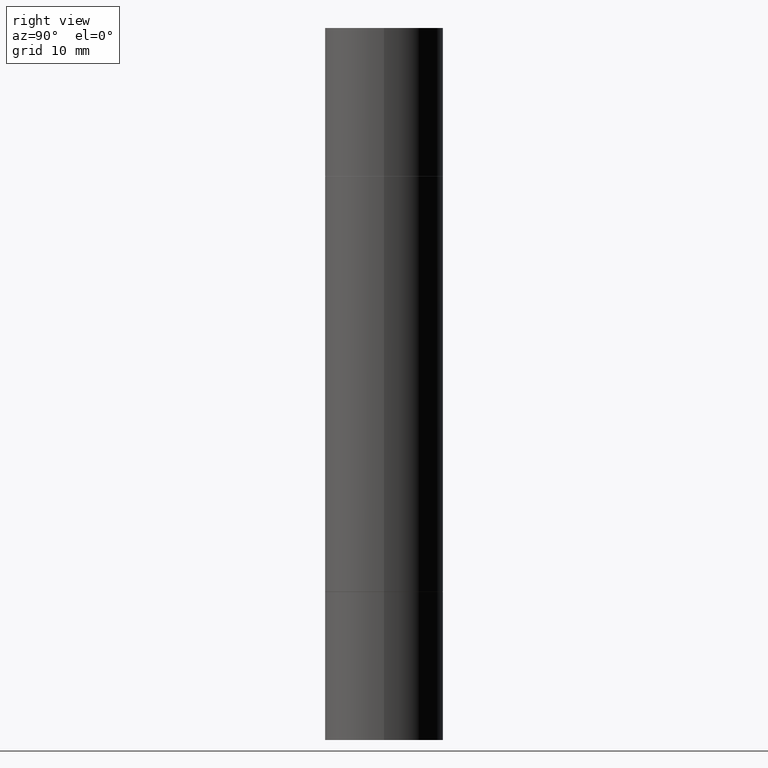
[diagram: clean part render]
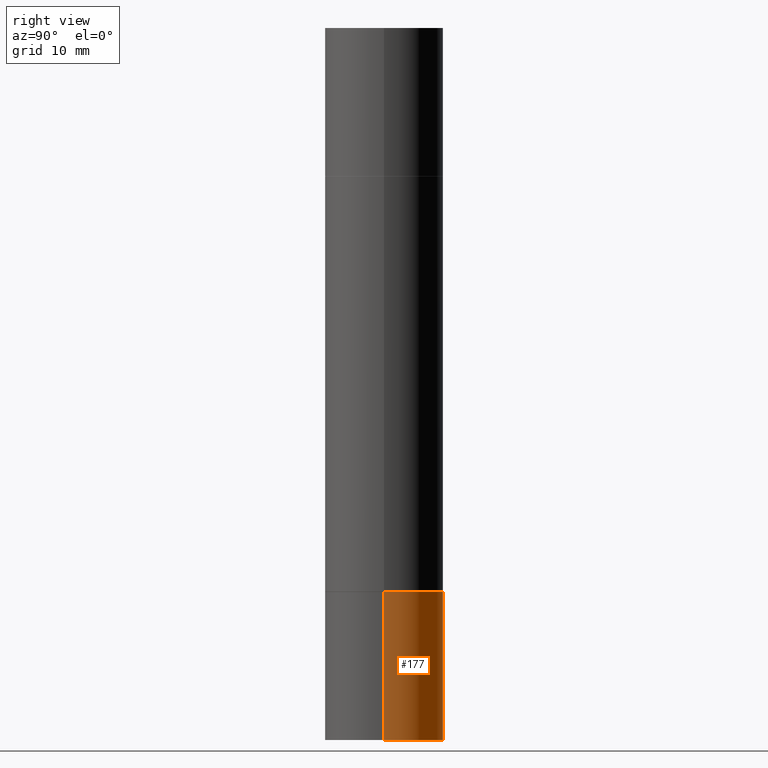
[diagram: same view with one face highlighted and labeled with its STEP entity id]
A machine part, right view. The second image highlights one B-rep face of the part: STEP entity #177.
In plain terms, the highlighted cylindrical surface (partial cylindrical patch) has radius 6.35 mm, axis along (-0, 0, 1).
Its self-contained STEP definition (entity closure, byte-faithful):
#41 = VERTEX_POINT ( 'NONE', #342 ) ;
#46 = EDGE_CURVE ( 'NONE', #110, #528, #500, .T. ) ;
#47 = CARTESIAN_POINT ( 'NONE',  ( 0.000000000000000000, 0.000000000000000000, 0.000000000000000000 ) ) ;
#65 = AXIS2_PLACEMENT_3D ( 'NONE', #357, #470, #413 ) ;
#110 = VERTEX_POINT ( 'NONE', #508 ) ;
#113 = LINE ( 'NONE', #637, #650 ) ;
#155 = DIRECTION ( 'NONE',  ( -2.445468806185136877E-29, 3.491481338843145188E-15, 1.000000000000000000 ) ) ;
#160 = CYLINDRICAL_SURFACE ( 'NONE', #676, 0.2500000000000000000 ) ;
#177 = ADVANCED_FACE ( 'NONE', ( #263 ), #160, .T. ) ;
#231 = EDGE_CURVE ( 'NONE', #370, #41, #113, .T. ) ;
#261 = ORIENTED_EDGE ( 'NONE', *, *, #46, .F. ) ;
#263 = FACE_OUTER_BOUND ( 'NONE', #550, .T. ) ;
#293 = DIRECTION ( 'NONE',  ( 1.000000000000000000, -6.982962677686266711E-15, 0.000000000000000000 ) ) ;
#294 = CIRCLE ( 'NONE', #672, 0.2500000000000000000 ) ;
#337 = CARTESIAN_POINT ( 'NONE',  ( 0.2500000000000000000, -1.003800884917403837E-14, -2.375000000000000000 ) ) ;
#341 = VECTOR ( 'NONE', #510, 39.37007874015748143 ) ;
#342 = CARTESIAN_POINT ( 'NONE',  ( -0.2500000000000000000, -7.606999258740704349E-15, -2.375000000000000000 ) ) ;
#357 = CARTESIAN_POINT ( 'NONE',  ( 7.336406418555409790E-29, -1.047444401652943635E-14, -3.000000000000000444 ) ) ;
#362 = DIRECTION ( 'NONE',  ( 1.000000000000000000, -6.982962677686266711E-15, 4.876176775795935793E-29 ) ) ;
#370 = VERTEX_POINT ( 'NONE', #492 ) ;
#394 = ORIENTED_EDGE ( 'NONE', *, *, #493, .T. ) ;
#412 = ORIENTED_EDGE ( 'NONE', *, *, #231, .T. ) ;
#413 = DIRECTION ( 'NONE',  ( 1.000000000000000000, -6.982962677686262766E-15, 0.000000000000000000 ) ) ;
#421 = DIRECTION ( 'NONE',  ( -2.445468806185136597E-29, 3.491481338843145583E-15, 1.000000000000000000 ) ) ;
#431 = ORIENTED_EDGE ( 'NONE', *, *, #601, .F. ) ;
#470 = DIRECTION ( 'NONE',  ( -2.445468806185136597E-29, 3.491481338843145583E-15, 1.000000000000000000 ) ) ;
#492 = CARTESIAN_POINT ( 'NONE',  ( -0.2500000000000000000, -7.606999258740704349E-15, -3.000000000000000444 ) ) ;
#493 = EDGE_CURVE ( 'NONE', #110, #370, #570, .T. ) ;
#500 = LINE ( 'NONE', #557, #341 ) ;
#508 = CARTESIAN_POINT ( 'NONE',  ( 0.2500000000000000000, -1.222018468595100303E-14, -3.000000000000000444 ) ) ;
#510 = DIRECTION ( 'NONE',  ( -2.445468806185136877E-29, 3.491481338843145188E-15, 1.000000000000000000 ) ) ;
#528 = VERTEX_POINT ( 'NONE', #337 ) ;
#550 = EDGE_LOOP ( 'NONE', ( #394, #412, #431, #261 ) ) ;
#557 = CARTESIAN_POINT ( 'NONE',  ( 0.2500000000000000000, -1.745740669421566678E-15, 1.219044193948983948E-29 ) ) ;
#558 = DIRECTION ( 'NONE',  ( -2.445468806185136597E-29, 3.491481338843145583E-15, 1.000000000000000000 ) ) ;
#570 = CIRCLE ( 'NONE', #65, 0.2500000000000000000 ) ;
#601 = EDGE_CURVE ( 'NONE', #528, #41, #294, .T. ) ;
#637 = CARTESIAN_POINT ( 'NONE',  ( -0.2500000000000000000, 1.776356839400250465E-15, -1.229733772563726445E-29 ) ) ;
#645 = CARTESIAN_POINT ( 'NONE',  ( 5.807988414689700538E-29, -8.292268179752471696E-15, -2.375000000000000000 ) ) ;
#650 = VECTOR ( 'NONE', #155, 39.37007874015748143 ) ;
#672 = AXIS2_PLACEMENT_3D ( 'NONE', #645, #558, #293 ) ;
#676 = AXIS2_PLACEMENT_3D ( 'NONE', #47, #421, #362 ) ;